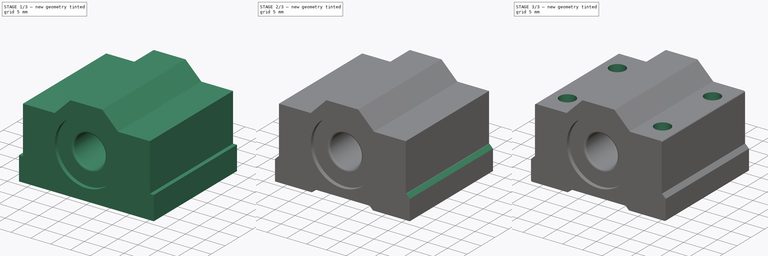
[diagram: build sequence overview — one tinted view per stage of 3, left to right]
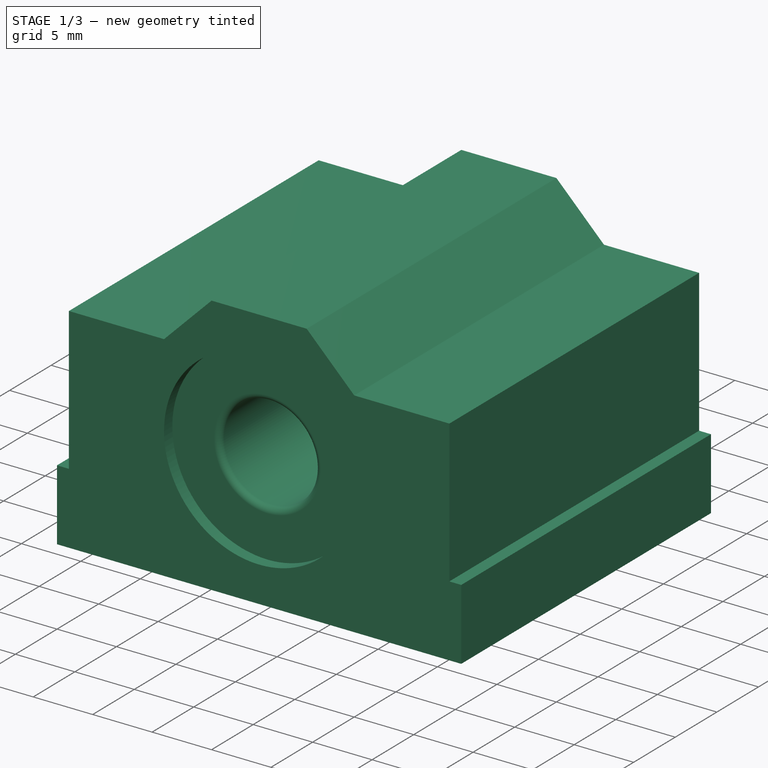
[diagram: stage 1 of 3 — iso view after this stage's code; geometry added in this stage tinted green]
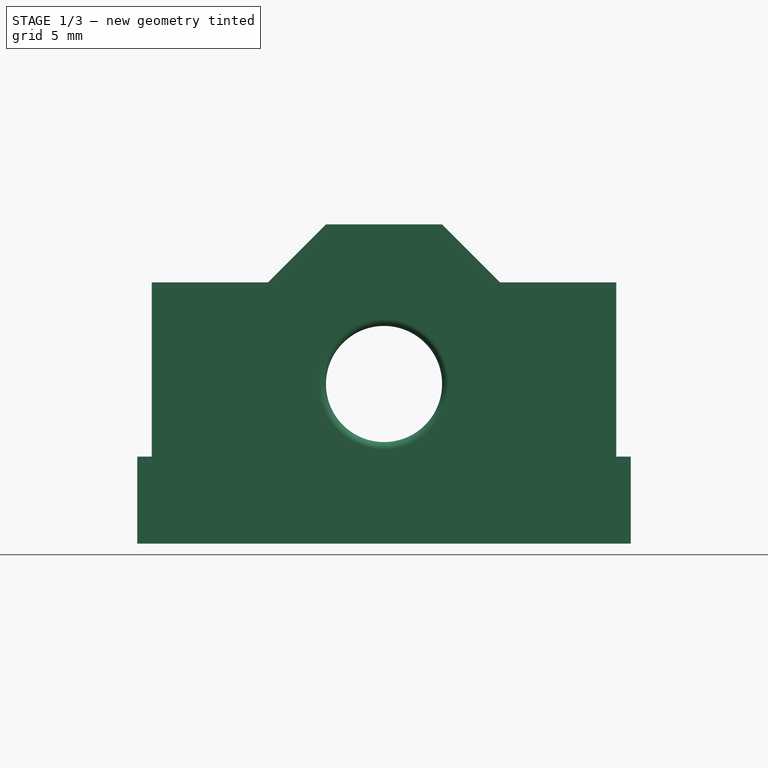
[diagram: stage 1 of 3 — front view after this stage's code; geometry added in this stage tinted green]
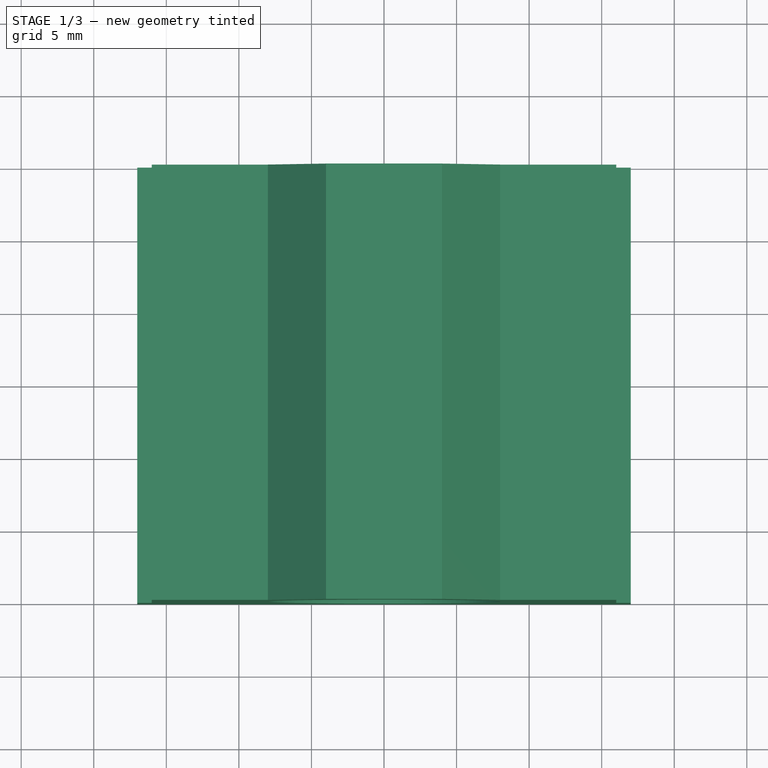
[diagram: stage 1 of 3 — top view after this stage's code; geometry added in this stage tinted green]
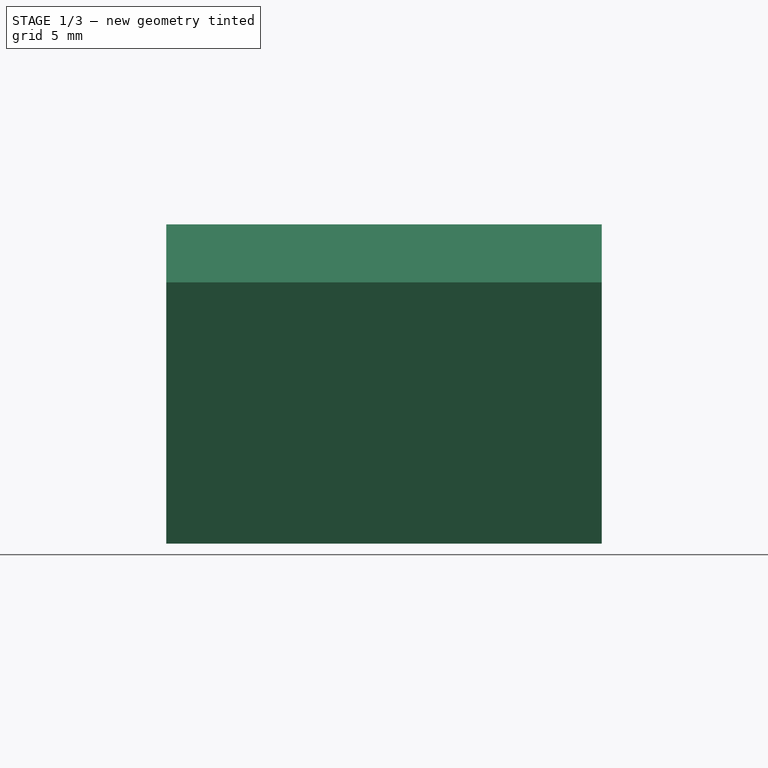
[diagram: stage 1 of 3 — right view after this stage's code; geometry added in this stage tinted green]
FCSTD DOCUMENT  (FreeCAD 1.0R39319 (Git))
Label: Bearing-Block-SCS8
License: All rights reserved
LicenseURL: http://en.wikipedia.org/wiki/All_rights_reserved
objects: Sketcher::SketchObject×4, PartDesign::Pad×2, PartDesign::Pocket×2, PartDesign::Fillet×2, PartDesign::Body×2, PartDesign::Chamfer×1, PartDesign::Mirrored×1
note: 33 computed .brp shape members not serialized (recipe doc carries the construction recipe); baked Part::Feature solids carry a one-line shape summary decoded from their .brp

FEATURE [Sketcher::SketchObject] Sketch
  ArcFitTolerance = 0
  AttachmentSupport = -> [XZ_Plane]
  FullyConstrained = true
  MakeInternals = false
  MapMode = 5
  Placement = pos=(0,0,0) rot=(1,0,0;1.5708rad)
  sketch-geometry (13):
    g0: Circle CenterX=0 CenterY=0 CenterZ=0 NormalX=0 NormalY=0 NormalZ=1 AngleXU=0 Radius=8
    g1: LineSegment StartX=-17 StartY=-11 StartZ=0 EndX=17 EndY=-11 EndZ=0
    g2: LineSegment StartX=17 StartY=-11 StartZ=0 EndX=17 EndY=-5 EndZ=0
    g3: LineSegment StartX=17 StartY=-5 StartZ=0 EndX=16 EndY=-5 EndZ=0
    g4: LineSegment StartX=16 StartY=-5 StartZ=0 EndX=16 EndY=7 EndZ=0
    g5: LineSegment StartX=16 StartY=7 StartZ=0 EndX=8 EndY=7 EndZ=0
    g6: LineSegment StartX=8 StartY=7 StartZ=0 EndX=4 EndY=11 EndZ=0
    g7: LineSegment StartX=4 StartY=11 StartZ=0 EndX=-4 EndY=11 EndZ=0
    g8: LineSegment StartX=-4 StartY=11 StartZ=0 EndX=-8 EndY=7 EndZ=0
    g9: LineSegment StartX=-8 StartY=7 StartZ=0 EndX=-16 EndY=7 EndZ=0
    g10: LineSegment StartX=-16 StartY=7 StartZ=0 EndX=-16 EndY=-5 EndZ=0
    g11: LineSegment StartX=-16 StartY=-5 StartZ=0 EndX=-17 EndY=-5 EndZ=0
    g12: LineSegment StartX=-17 StartY=-5 StartZ=0 EndX=-17 EndY=-11 EndZ=0
  constraints (35):
    c: Coincident(g0,g-1)
    c: Coincident(g1,g2)
    c: Vertical(g2)
    c: Coincident(g2,g3)
    c: Coincident(g3,g4)
    c: Vertical(g4)
    c: Coincident(g4,g5)
    c: Horizontal(g5)
    c: Coincident(g5,g6)
    c: Coincident(g6,g7)
    c: Coincident(g7,g8)
    c: Coincident(g8,g9)
    c: Horizontal(g9)
    c: Coincident(g9,g10)
    c: Vertical(g10)
    c: Coincident(g10,g11)
    c: Horizontal(g11)
    c: Coincident(g11,g12)
    c: Vertical(g12)
    c: Coincident(g12,g1)
    c: DistanceX(g1,g1) = 34
    c: Symmetric(g1,g1,g-2)
    c: Horizontal(g3)
    c: Symmetric(g6,g7,g-2)
    c: Equal(g2,g12)
    c: DistanceY(g2,g2) = 6
    c: DistanceY(g1,g0) = 11
    c: Equal(g11,g3)
    c: Diameter(g0) = 16
    c: Symmetric(g8,g5,g-2)
    c: DistanceY(g1,g4) = 18
    c: DistanceX(g3,g3) = 1
    c: DistanceX(g5,g5) = 8
    c: DistanceY(g1,g7) = 22
    c: Angle(g8,g9) = 2.35619
FEATURE [PartDesign::Pad] Pad
  AllowMultiFace = false
  Direction = (0,-1,2e-16)
  Length = 30
  Length2 = 100
  Midplane = true
  Placement = pos=(0,0,0) rot=(1,0,0;1.5708rad)
  Profile = -> Sketch
  Suppressed = false
  Type = 0
FEATURE [PartDesign::Body] Body
  AllowCompound = false
  Group = -> [Sketch,Pad,Sketch001,Pocket,Chamfer,Fillet,Sketch002,Pocket001,Mirrored]
  Origin = -> Origin
  Tip = -> Mirrored
FEATURE [Sketcher::SketchObject] Sketch003
  ArcFitTolerance = 0
  AttachmentSupport = -> [XZ_Plane001]
  FullyConstrained = true
  MakeInternals = false
  MapMode = 5
  Placement = pos=(0,0,0) rot=(1,0,0;1.5708rad)
  sketch-geometry (2):
    g0: Circle CenterX=0 CenterY=0 CenterZ=0 NormalX=0 NormalY=0 NormalZ=1 AngleXU=0 Radius=8
    g1: Circle CenterX=0 CenterY=0 CenterZ=0 NormalX=0 NormalY=0 NormalZ=1 AngleXU=0 Radius=4
  constraints (4):
    c: Coincident(g0,g-1)
    c: Coincident(g1,g0)
    c: Diameter(g1) = 8
    c: Diameter(g0) = 16
FEATURE [PartDesign::Pad] Pad001
  AllowMultiFace = false
  Direction = (0,-1,2e-16)
  Length = 28
  Length2 = 100
  Midplane = true
  Placement = pos=(0,0,0) rot=(1,0,0;1.5708rad)
  Profile = -> Sketch003
  Suppressed = false
  Type = 0
FEATURE [PartDesign::Fillet] Fillet001
  Base = -> Pad001 [Edge6,Edge5]
  BaseFeature = -> Pad001
  Placement = pos=(0,0,0) rot=(1,0,0;1.5708rad)
  Radius = 0.5
  Refine = true
  SupportTransform = false
  Suppressed = false
  UseAllEdges = false
FEATURE [PartDesign::Body] Body001
  AllowCompound = false
  Group = -> [Sketch003,Pad001,Fillet001]
  Origin = -> Origin001
  Tip = -> Fillet001
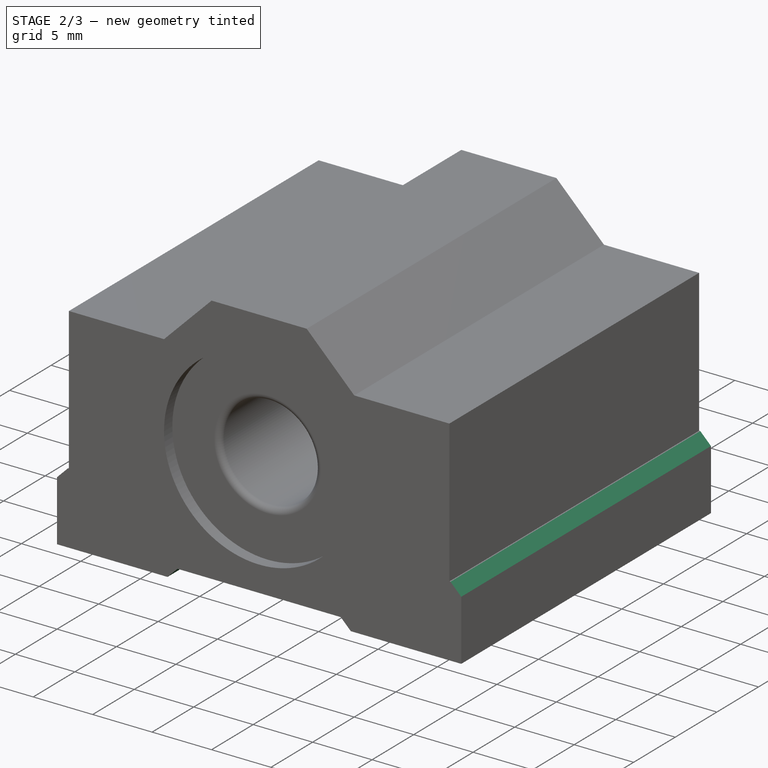
[diagram: stage 2 of 3 — iso view after this stage's code; geometry added in this stage tinted green]
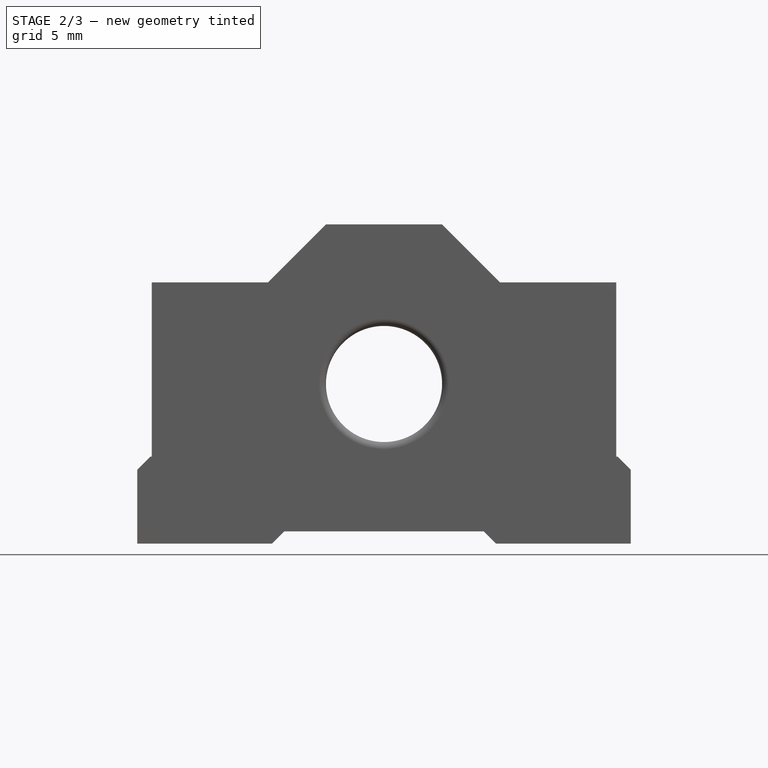
[diagram: stage 2 of 3 — front view after this stage's code; geometry added in this stage tinted green]
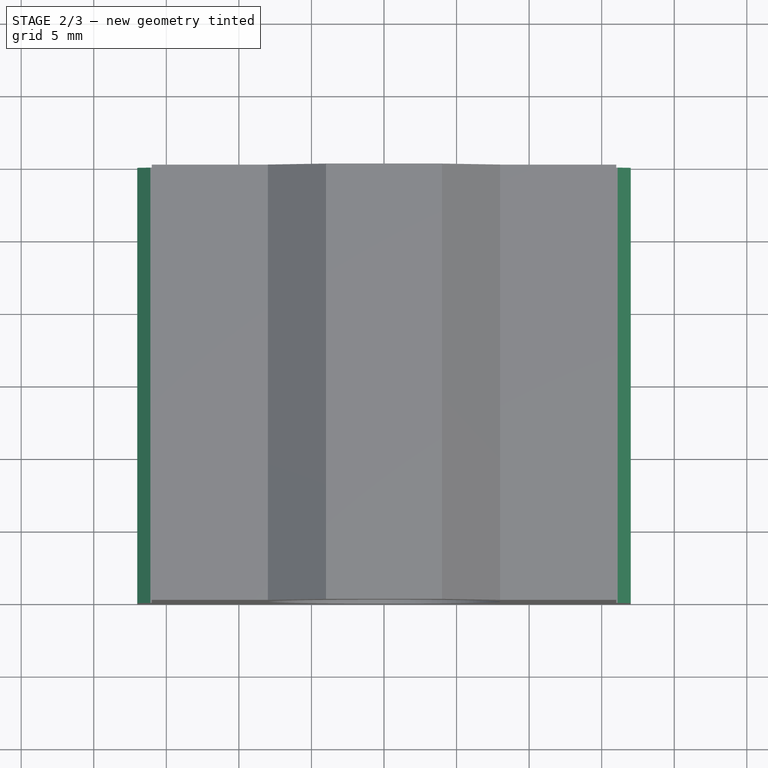
[diagram: stage 2 of 3 — top view after this stage's code; geometry added in this stage tinted green]
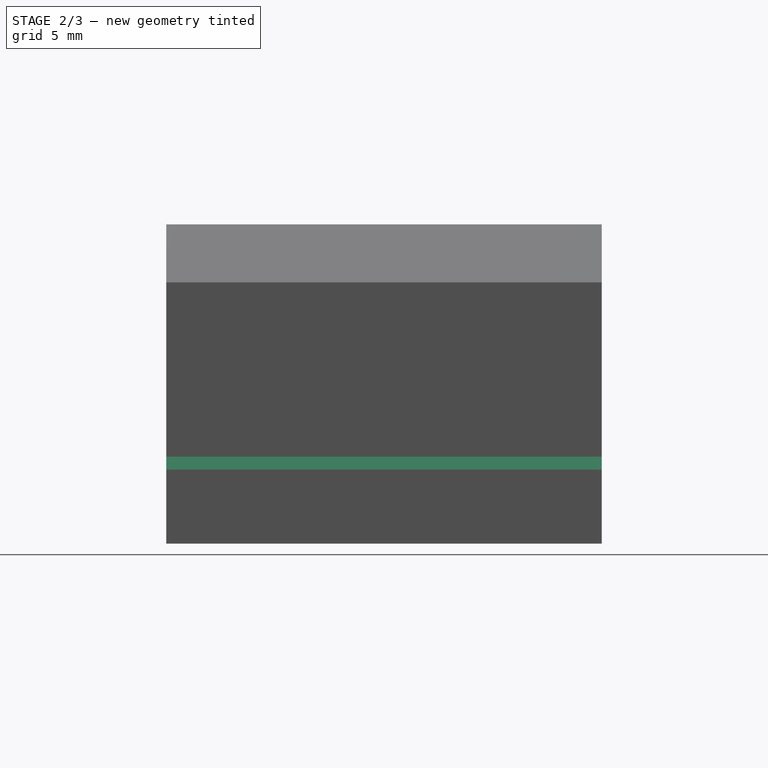
[diagram: stage 2 of 3 — right view after this stage's code; geometry added in this stage tinted green]
FEATURE [Sketcher::SketchObject] Sketch001
  ArcFitTolerance = 0
  FullyConstrained = false
  MakeInternals = false
  MapMode = 5
  Placement = pos=(0,15,3.3e-15) rot=(-1,0,0;1.5708rad)
  sketch-geometry (6):
    g0: LineSegment StartX=-8 StartY=12.1567 StartZ=0 EndX=-8 EndY=11.2889 EndZ=0
    g1: LineSegment StartX=-8 StartY=11.2889 StartZ=0 EndX=-6.86775 EndY=10.1567 EndZ=0
    g2: LineSegment StartX=-6.86775 StartY=10.1567 StartZ=0 EndX=6.86775 EndY=10.1567 EndZ=0
    g3: LineSegment StartX=6.86775 StartY=10.1567 StartZ=0 EndX=8 EndY=11.2889 EndZ=0
    g4: LineSegment StartX=8 StartY=11.2889 StartZ=0 EndX=8 EndY=12.1567 EndZ=0
    g5: LineSegment StartX=8 StartY=12.1567 StartZ=0 EndX=-8 EndY=12.1567 EndZ=0
  constraints (14):
    c: Vertical(g0)
    c: Coincident(g0,g1)
    c: Coincident(g1,g2)
    c: Coincident(g2,g3)
    c: Coincident(g3,g4)
    c: Coincident(g4,g5)
    c: Coincident(g5,g0)
    c: Vertical(g4)
    c: Symmetric(g4,g0,g-2)
    c: Symmetric(g2,g1,g-2)
    c: Equal(g4,g0)
    c: Angle(g4,g3) = 2.35619
    c: DistanceY(g2,g4) = 2
    c: DistanceX(g5,g5) = 16
FEATURE [PartDesign::Pocket] Pocket
  AllowMultiFace = false
  BaseFeature = -> Pad
  Direction = (0,-1,0)
  Length = 35
  Length2 = 100
  Placement = pos=(0,0,0) rot=(1,0,0;1.5708rad)
  Profile = -> Sketch001
  Suppressed = false
  Type = 0
FEATURE [PartDesign::Chamfer] Chamfer
  Angle = 45
  Base = -> Pocket [Edge47,Edge38]
  BaseFeature = -> Pocket
  ChamferType = 0
  FlipDirection = false
  Placement = pos=(0,0,0) rot=(1,0,0;1.5708rad)
  Refine = true
  Size = 0.9
  Size2 = 1
  SupportTransform = false
  Suppressed = false
  UseAllEdges = false
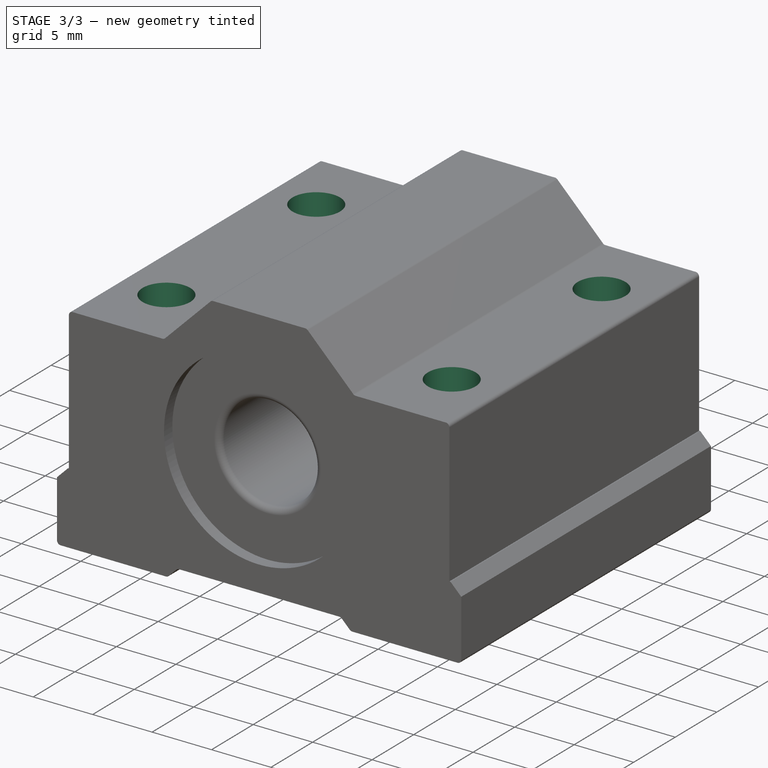
[diagram: stage 3 of 3 — iso view after this stage's code; geometry added in this stage tinted green]
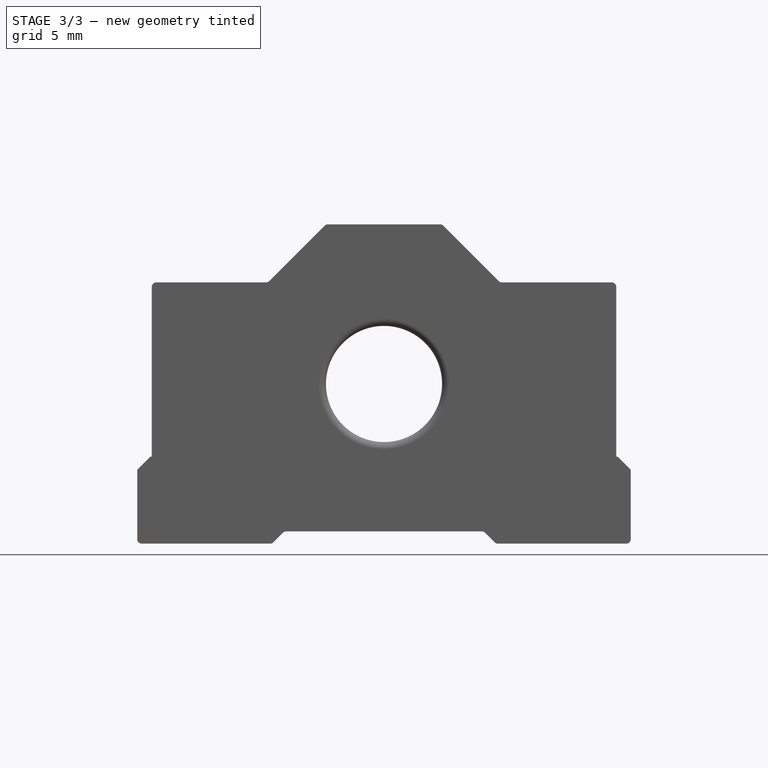
[diagram: stage 3 of 3 — front view after this stage's code; geometry added in this stage tinted green]
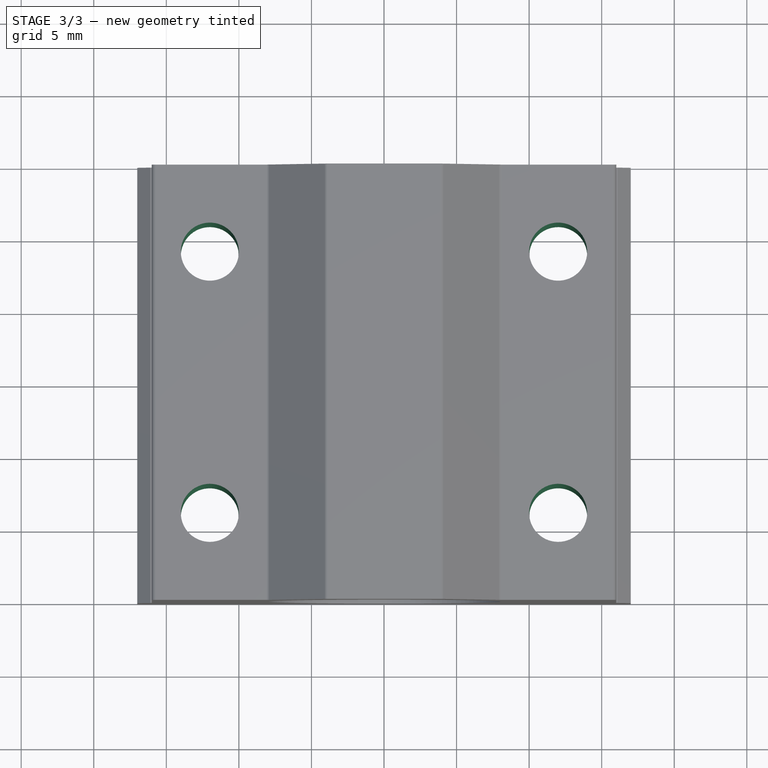
[diagram: stage 3 of 3 — top view after this stage's code; geometry added in this stage tinted green]
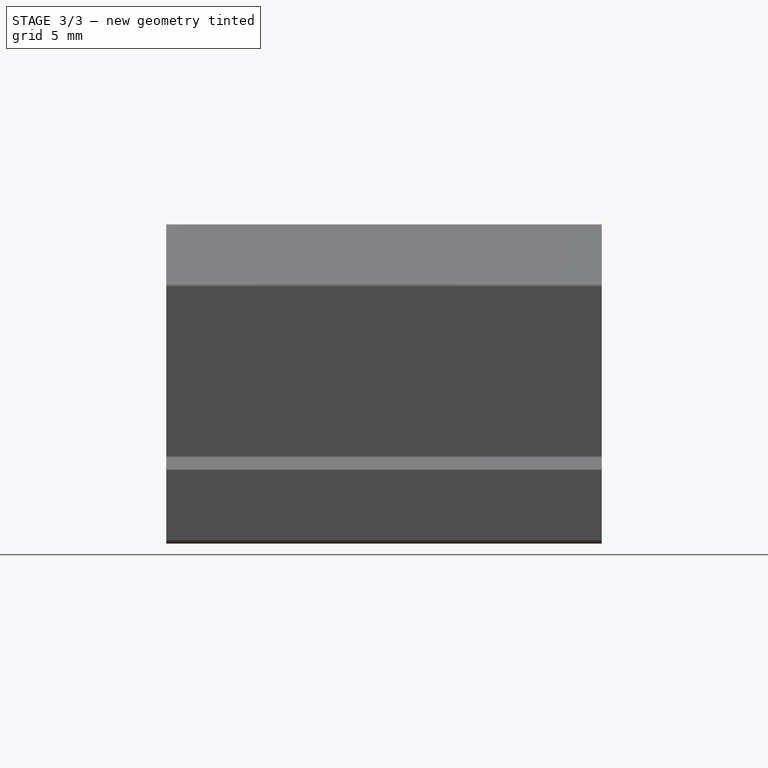
[diagram: stage 3 of 3 — right view after this stage's code; geometry added in this stage tinted green]
FEATURE [PartDesign::Fillet] Fillet
  Base = -> Chamfer [Edge21,Edge41,Edge37,Edge33,Edge29,Edge25,Edge51,Edge31,Edge43,Edge39,Edge35,Edge47]
  BaseFeature = -> Chamfer
  Placement = pos=(0,0,0) rot=(1,0,0;1.5708rad)
  Radius = 0.3
  Refine = true
  SupportTransform = false
  Suppressed = false
  UseAllEdges = false
FEATURE [Sketcher::SketchObject] Sketch002
  ArcFitTolerance = 0
  AttachmentSupport = -> [Fillet]
  FullyConstrained = true
  MakeInternals = false
  MapMode = 5
  Placement = pos=(0,1.6e-15,7) rot=(0,0,1;3.14159rad)
  sketch-geometry (2):
    g0: Circle CenterX=-12 CenterY=-9 CenterZ=0 NormalX=0 NormalY=0 NormalZ=1 AngleXU=0 Radius=2
    g1: Circle CenterX=-12 CenterY=9 CenterZ=0 NormalX=0 NormalY=0 NormalZ=1 AngleXU=0 Radius=2
  constraints (5):
    c: Symmetric(g1,g0,g-1)
    c: Equal(g0,g1)
    c: Diameter(g0) = 4
    c: DistanceY(g0,g1) = 18
    c: DistanceX(g0,g-1) = 12
FEATURE [PartDesign::Pocket] Pocket001
  AllowMultiFace = false
  BaseFeature = -> Fillet
  Direction = (0,0,-1)
  Length = 20
  Length2 = 100
  Placement = pos=(0,0,0) rot=(1,0,0;1.5708rad)
  Profile = -> Sketch002
  Suppressed = false
  Type = 0
FEATURE [PartDesign::Mirrored] Mirrored
  BaseFeature = -> Pocket001
  MirrorPlane = -> Sketch002 [V_Axis]
  Originals = -> [Pocket001]
  Placement = pos=(0,0,0) rot=(1,0,0;1.5708rad)
  Suppressed = false
  TransformMode = 0
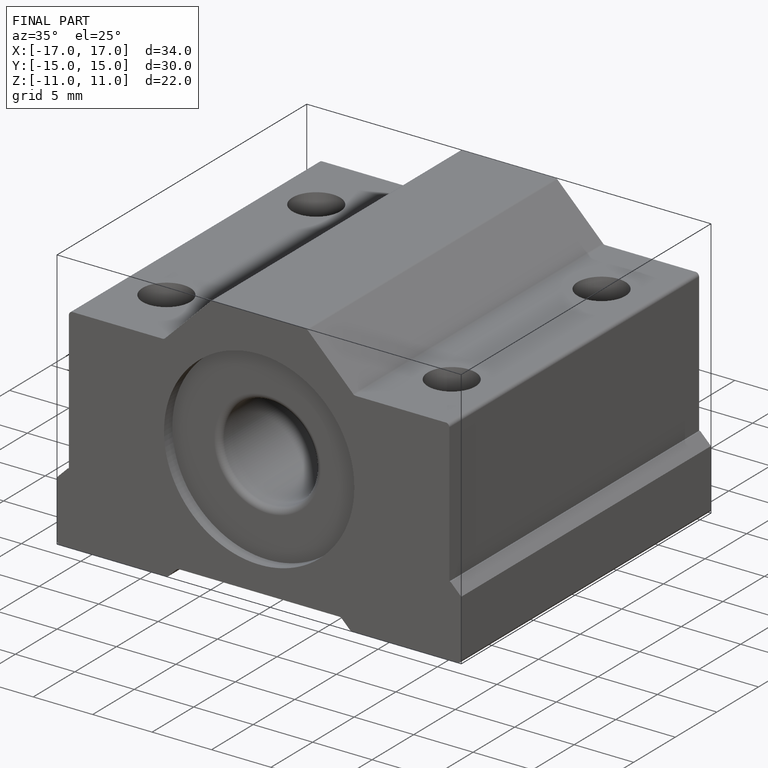
[diagram: finished part — iso view with bounding-box wireframe]
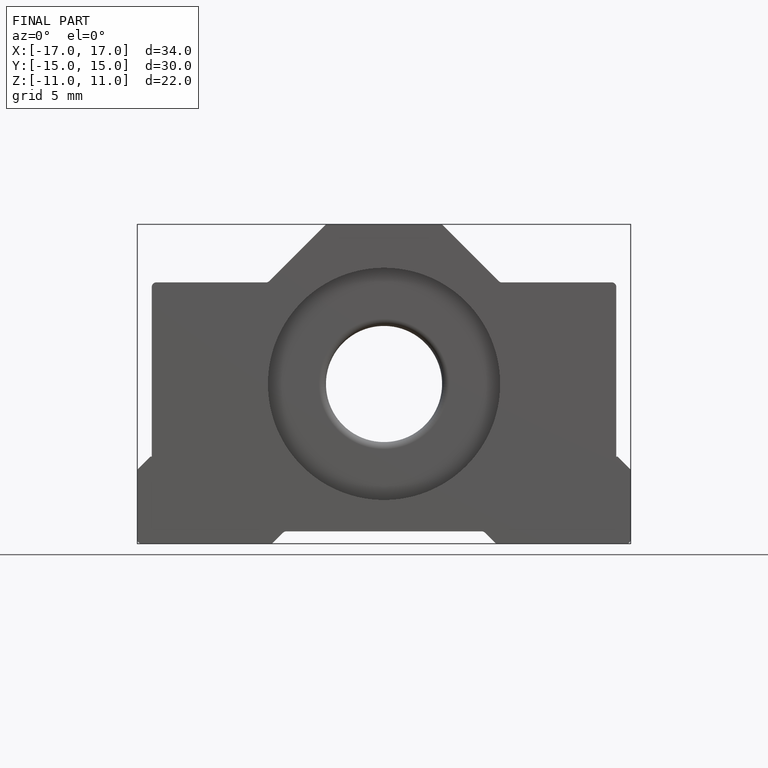
[diagram: finished part — front view with bounding-box wireframe]
